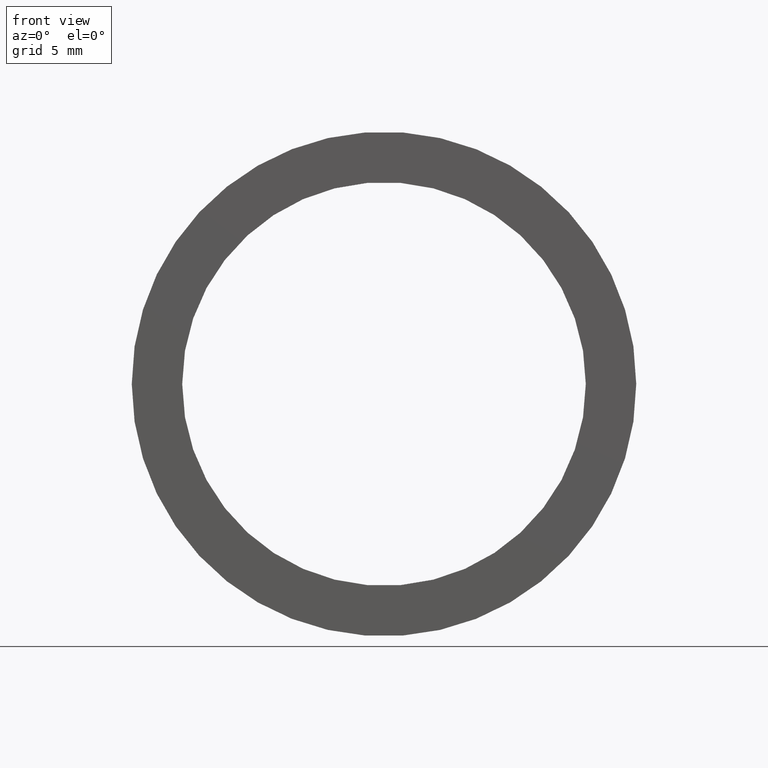
[diagram: clean part render]
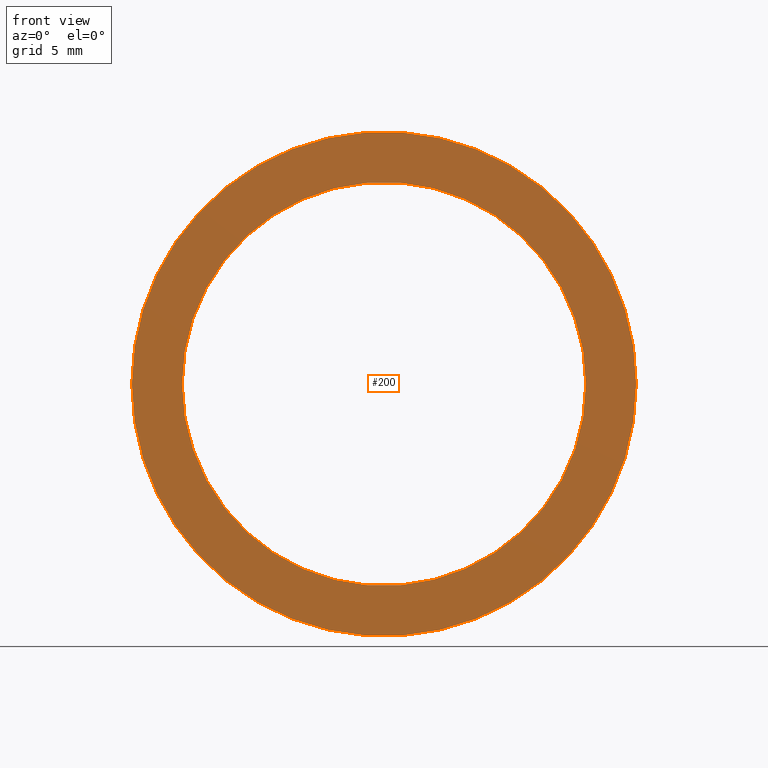
[diagram: same view with one face highlighted and labeled with its STEP entity id]
A machine part, front view. The second image highlights one B-rep face of the part: STEP entity #200.
In plain terms, the highlighted planar face has unit normal (-0, 1, 0).
Its self-contained STEP definition (entity closure, byte-faithful):
#47 = CARTESIAN_POINT ( 'NONE',  ( -19.04999999999999700, -5.802399104329318300E-015, 0.0000000000000000000 ) ) ;
#49 = CARTESIAN_POINT ( 'NONE',  ( 2.067940818438636500E-015, -3.469446951953614200E-015, 0.0000000000000000000 ) ) ;
#64 = CARTESIAN_POINT ( 'NONE',  ( 2.067940818438636500E-015, -3.469446951953614200E-015, 0.0000000000000000000 ) ) ;
#83 = VERTEX_POINT ( 'NONE', #251 ) ;
#85 = CARTESIAN_POINT ( 'NONE',  ( 2.067940818438636500E-015, -3.469446951953614200E-015, 0.0000000000000000000 ) ) ;
#98 = DIRECTION ( 'NONE',  ( -1.000000000000000000, -1.224646799147351200E-016, 0.0000000000000000000 ) ) ;
#127 = VERTEX_POINT ( 'NONE', #47 ) ;
#140 = EDGE_LOOP ( 'NONE', ( #403, #307 ) ) ;
#150 = DIRECTION ( 'NONE',  ( -1.000000000000000000, -1.224646799147350700E-016, 0.0000000000000000000 ) ) ;
#169 = AXIS2_PLACEMENT_3D ( 'NONE', #300, #303, #98 ) ;
#185 = ORIENTED_EDGE ( 'NONE', *, *, #423, .F. ) ;
#200 = ADVANCED_FACE ( 'NONE', ( #232, #405 ), #223, .F. ) ;
#202 = DIRECTION ( 'NONE',  ( -1.000000000000000000, -1.224646799147351200E-016, 0.0000000000000000000 ) ) ;
#213 = AXIS2_PLACEMENT_3D ( 'NONE', #64, #265, #202 ) ;
#223 = PLANE ( 'NONE',  #266 ) ;
#224 = EDGE_CURVE ( 'NONE', #258, #416, #284, .T. ) ;
#230 = DIRECTION ( 'NONE',  ( -1.224646799147351000E-016, 1.000000000000000000, -0.0000000000000000000 ) ) ;
#232 = FACE_OUTER_BOUND ( 'NONE', #245, .T. ) ;
#239 = CIRCLE ( 'NONE', #213, 19.05000000000000100 ) ;
#245 = EDGE_LOOP ( 'NONE', ( #185, #362 ) ) ;
#251 = CARTESIAN_POINT ( 'NONE',  ( 19.05000000000000400, -1.136494799577910300E-015, 2.332952152375708400E-015 ) ) ;
#258 = VERTEX_POINT ( 'NONE', #366 ) ;
#265 = DIRECTION ( 'NONE',  ( -1.224646799147351000E-016, 1.000000000000000000, -0.0000000000000000000 ) ) ;
#266 = AXIS2_PLACEMENT_3D ( 'NONE', #320, #282, #359 ) ;
#277 = CIRCLE ( 'NONE', #374, 15.24000000000000000 ) ;
#282 = DIRECTION ( 'NONE',  ( -1.224646799147351000E-016, 1.000000000000000000, 0.0000000000000000000 ) ) ;
#284 = CIRCLE ( 'NONE', #291, 15.24000000000000000 ) ;
#291 = AXIS2_PLACEMENT_3D ( 'NONE', #49, #321, #150 ) ;
#296 = DIRECTION ( 'NONE',  ( -1.000000000000000000, -1.224646799147350700E-016, 0.0000000000000000000 ) ) ;
#299 = CARTESIAN_POINT ( 'NONE',  ( -15.23999999999999800, -5.335808673854176800E-015, 0.0000000000000000000 ) ) ;
#300 = CARTESIAN_POINT ( 'NONE',  ( 2.067940818438636500E-015, -3.469446951953614200E-015, 0.0000000000000000000 ) ) ;
#303 = DIRECTION ( 'NONE',  ( -1.224646799147351000E-016, 1.000000000000000000, -0.0000000000000000000 ) ) ;
#307 = ORIENTED_EDGE ( 'NONE', *, *, #224, .T. ) ;
#310 = EDGE_CURVE ( 'NONE', #416, #258, #277, .T. ) ;
#320 = CARTESIAN_POINT ( 'NONE',  ( 19.05000000000000400, -4.336808689942023700E-016, 0.0000000000000000000 ) ) ;
#321 = DIRECTION ( 'NONE',  ( -1.224646799147351000E-016, 1.000000000000000000, -0.0000000000000000000 ) ) ;
#359 = DIRECTION ( 'NONE',  ( -1.000000000000000000, -1.224646799147351000E-016, 0.0000000000000000000 ) ) ;
#362 = ORIENTED_EDGE ( 'NONE', *, *, #412, .F. ) ;
#366 = CARTESIAN_POINT ( 'NONE',  ( 15.24000000000000400, -1.603085230053050900E-015, 1.866361721900566600E-015 ) ) ;
#374 = AXIS2_PLACEMENT_3D ( 'NONE', #85, #230, #296 ) ;
#403 = ORIENTED_EDGE ( 'NONE', *, *, #310, .T. ) ;
#405 = FACE_BOUND ( 'NONE', #140, .T. ) ;
#412 = EDGE_CURVE ( 'NONE', #83, #127, #421, .T. ) ;
#416 = VERTEX_POINT ( 'NONE', #299 ) ;
#421 = CIRCLE ( 'NONE', #169, 19.05000000000000100 ) ;
#423 = EDGE_CURVE ( 'NONE', #127, #83, #239, .T. ) ;